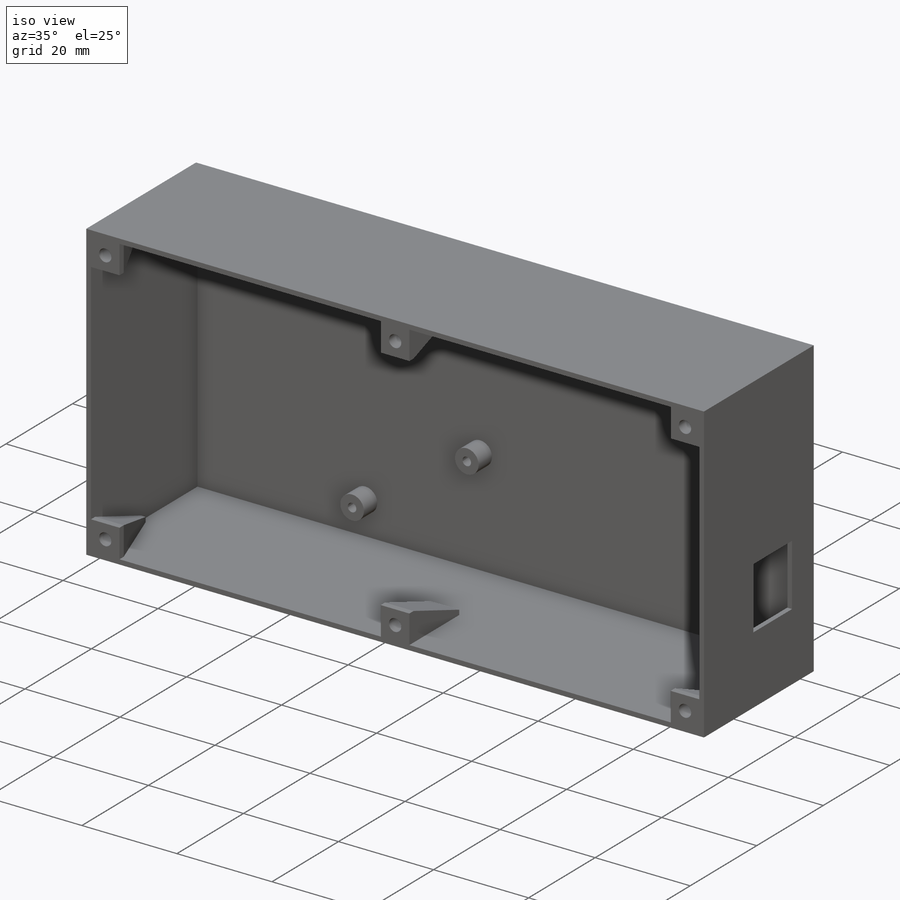
[diagram: iso view]
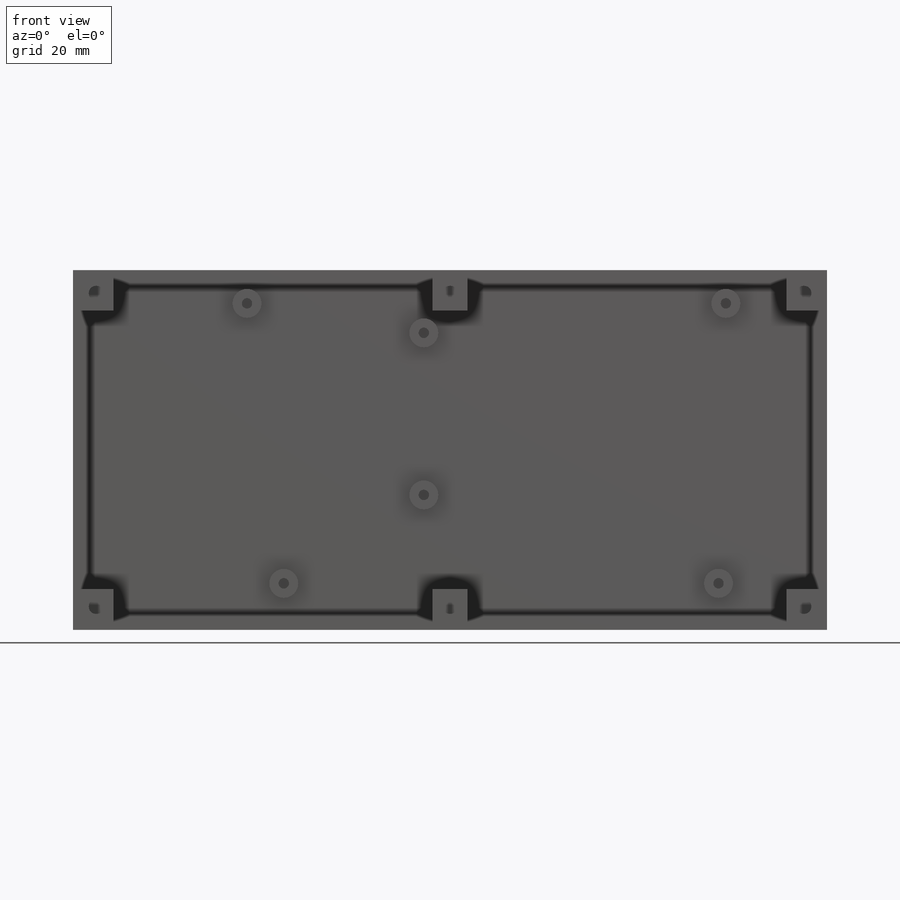
[diagram: front view]
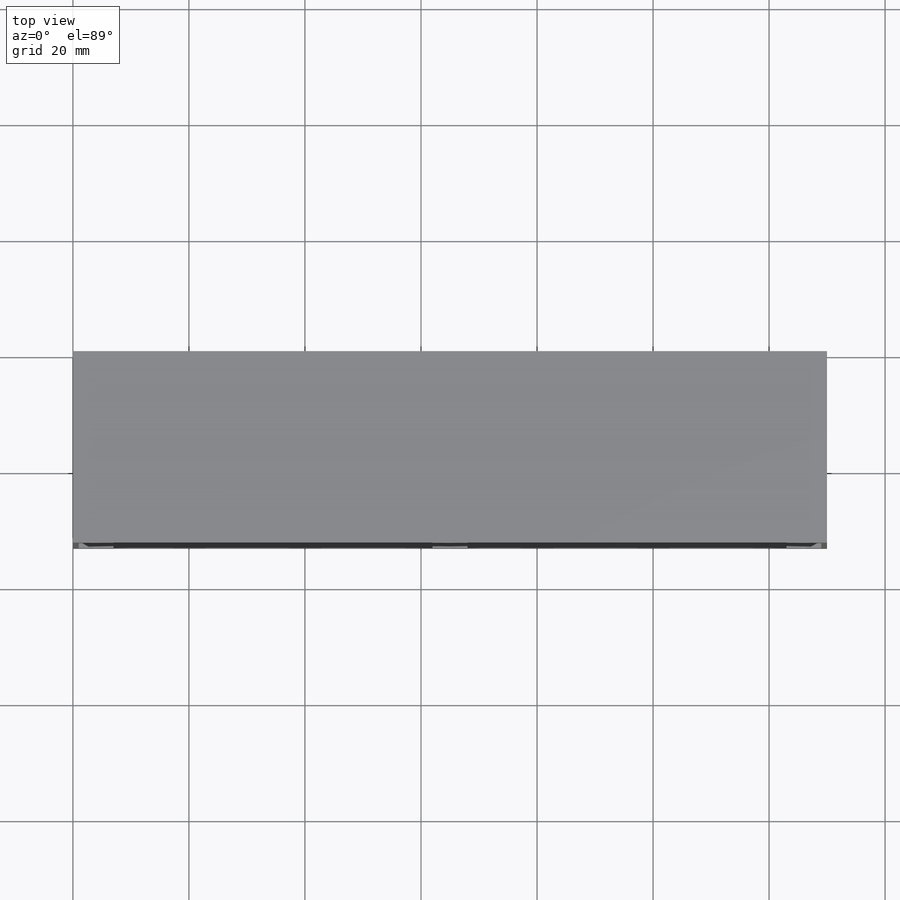
[diagram: top view]
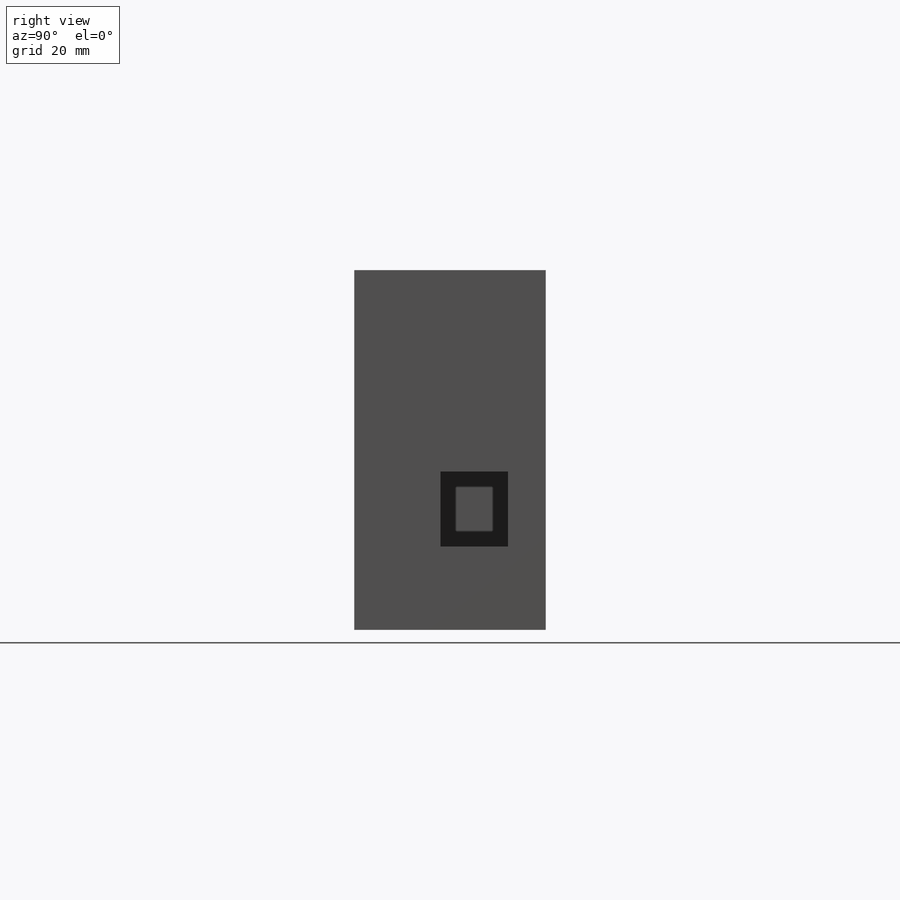
[diagram: right view]
SOLIDWORKS PART (.sldprt)
format: sldprt  version: not decoded by parser v0  size: 378,368 bytes
history: native  units: mm
features: sketch x6, extrude x4, plane x3, cut_extrude x2, material x1, chamfer x1 (+10 scaffold rows collapsed)
feature tree (27):
  scaffold x10  (default folders/planes/origin — collapsed)
  material  "Matériau <non spécifié>"
  plane  "Plan de face"
  plane  "Plan de dessus"
  plane  "Plan de droite"
  sketch  "Esquisse1"  dims[D1=74.0mm D2=142.0mm]
  extrude  "Boss.-Extru.1"  Depth=1mm
  sketch  "Esquisse2"  dims[c1.D1=1.0mm c1.D2=1.0mm c1.D3=1.0mm c1.D4=1.0mm c2.D3=1.0mm]
  extrude  "Boss.-Extru.2"  Depth=32mm
  sketch  "Esquisse3"  dims[c1.D3=2.6mm c1.D8=2.6mm c1.D1=6.0mm c1.D2=6.0mm c1.D4=3.0mm c1.D5=3.0mm c1.D6=6.0mm c1.D7=6.0mm c1.D9=3.0mm c1.D10=3.0mm c2.D3=6.0mm c2.D4=6.0mm c2.D5=6.0mm c2.D8=6.0mm c2.D9=6.0mm c2.D10=6.0mm c2.D11=6.0mm c2.D12=6.0mm c2.D13=55.0mm c2.D14=67.0mm c2.D15=55.0mm c2.D16=67.0mm]
  extrude  "Boss.-Extru.3"  Depth=15mm
  chamfer  "Chanfrein1"  Distance=5mm Angle=70deg
  sketch  "Esquisse4"  dims[D1=2.2mm D4=2.2mm D11=2.2mm D12=2.2mm D13=2.2mm D16=2.2mm D2=3.0mm D3=3.0mm D5=3.0mm D6=3.0mm D7=3.0mm D8=3.0mm D9=3.0mm D10=3.0mm D14=3.0mm D15=3.0mm]
  cut_extrude  "Enlèv. mat.-Extru.1"  Depth=4mm
  sketch  "Esquisse5"  dims[D1=1.8mm D2=5.0mm D3=1.8mm D4=5.0mm D5=1.8mm D6=5.0mm D7=1.8mm D8=5.0mm D9=1.8mm D10=5.0mm D11=1.8mm D12=5.0mm D13=30.48mm D14=5.08mm D15=27.94mm D16=30.48mm D17=~24.143811mm D18=~15.246561mm D19=50.8mm D20=15.24mm D21=~52.070956mm D22=5.08mm D23=10.5mm D24=104.0mm]
  extrude  "Boss.-Extru.4"  Depth=4mm
  sketch  "Esquisse6"  dims[D1=~12.977079mm D2=~11.635873mm D3=20.5mm]
  cut_extrude  "Enlèv. mat.-Extru.2"  Depth=3mm
decode coverage: 13 of 13 modeling features carry decoded parameters
note: ~ marks probable driven/reference dimensions
note: suppression state not decoded; provenance and decode notes live in map.json
